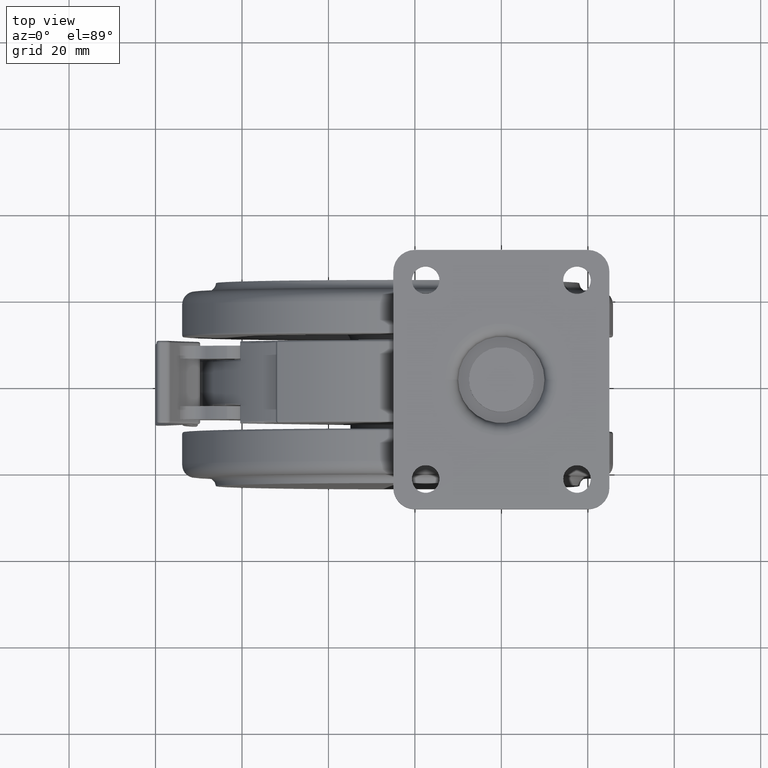
[diagram: clean part render]
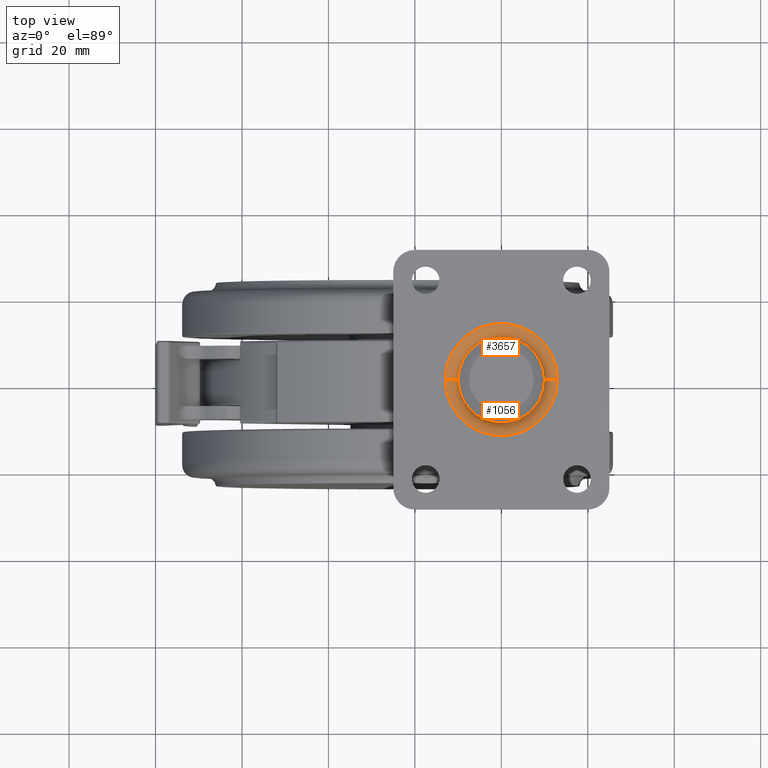
[diagram: same view with one multi-face feature highlighted, each face labeled with its STEP entity id]
A machine part, top view. The highlighted faces form ONE feature: a constant-radius fillet chain: 2 tangent blend faces with common blend radius 3 mm. The faces share edges in the B-rep.
Their STEP definitions:
[1] entity #1056 (Torus):
#108 = AXIS2_PLACEMENT_3D ( 'NONE', #2502, #572, #6081 ) ;
#311 = DIRECTION ( 'NONE',  ( -1.000000000000000000, 0.0000000000000000000, 0.0000000000000000000 ) ) ;
#465 = VERTEX_POINT ( 'NONE', #3398 ) ;
#572 = DIRECTION ( 'NONE',  ( 0.0000000000000000000, 0.0000000000000000000, -1.000000000000000000 ) ) ;
#611 = CIRCLE ( 'NONE', #5923, 13.00000000000000000 ) ;
#645 = DIRECTION ( 'NONE',  ( -0.0000000000000000000, -0.0000000000000000000, 1.000000000000000000 ) ) ;
#716 = CARTESIAN_POINT ( 'NONE',  ( 10.00000000000000000, -2.701336561138454100E-014, 11.00000000000000000 ) ) ;
#845 = AXIS2_PLACEMENT_3D ( 'NONE', #2638, #7286, #3303 ) ;
#1050 = EDGE_CURVE ( 'NONE', #7793, #1757, #8194, .T. ) ;
#1056 = ADVANCED_FACE ( 'NONE', ( #4671 ), #3111, .T. ) ;
#1395 = CARTESIAN_POINT ( 'NONE',  ( -13.00000000000000000, -2.842170943040399500E-014, 11.00000000000000000 ) ) ;
#1757 = VERTEX_POINT ( 'NONE', #716 ) ;
#2065 = DIRECTION ( 'NONE',  ( 0.0000000000000000000, 0.0000000000000000000, -1.000000000000000000 ) ) ;
#2218 = CIRCLE ( 'NONE', #845, 3.000000000000000900 ) ;
#2502 = CARTESIAN_POINT ( 'NONE',  ( 0.0000000000000000000, -2.842170943040399500E-014, 11.00000000000000000 ) ) ;
#2638 = CARTESIAN_POINT ( 'NONE',  ( 13.00000000000000000, -2.682966859151243800E-014, 11.00000000000000000 ) ) ;
#2950 = CARTESIAN_POINT ( 'NONE',  ( -10.00000000000000000, -2.842170943040399500E-014, 11.00000000000000000 ) ) ;
#3006 = CARTESIAN_POINT ( 'NONE',  ( 13.00000000000000000, -2.682966859151243800E-014, 13.99999999999999800 ) ) ;
#3023 = CARTESIAN_POINT ( 'NONE',  ( 0.0000000000000000000, -2.842170943040399500E-014, 14.00000000000000000 ) ) ;
#3111 = TOROIDAL_SURFACE ( 'NONE', #108, 13.00000000000000000, 3.000000000000000000 ) ;
#3303 = DIRECTION ( 'NONE',  ( -1.000000000000000000, -1.224646799147350200E-016, 0.0000000000000000000 ) ) ;
#3398 = CARTESIAN_POINT ( 'NONE',  ( -13.00000000000000000, -2.842170943040399500E-014, 13.99999999999999800 ) ) ;
#3700 = DIRECTION ( 'NONE',  ( -1.000000000000000000, 0.0000000000000000000, 0.0000000000000000000 ) ) ;
#4130 = ORIENTED_EDGE ( 'NONE', *, *, #4479, .F. ) ;
#4479 = EDGE_CURVE ( 'NONE', #1757, #8125, #2218, .T. ) ;
#4671 = FACE_OUTER_BOUND ( 'NONE', #6946, .T. ) ;
#5055 = ORIENTED_EDGE ( 'NONE', *, *, #1050, .F. ) ;
#5622 = CIRCLE ( 'NONE', #6086, 2.999999999999999100 ) ;
#5923 = AXIS2_PLACEMENT_3D ( 'NONE', #3023, #7668, #3700 ) ;
#6044 = DIRECTION ( 'NONE',  ( -0.0000000000000000000, -1.000000000000000000, -0.0000000000000000000 ) ) ;
#6081 = DIRECTION ( 'NONE',  ( -1.000000000000000000, 0.0000000000000000000, 0.0000000000000000000 ) ) ;
#6086 = AXIS2_PLACEMENT_3D ( 'NONE', #1395, #6044, #2065 ) ;
#6198 = EDGE_CURVE ( 'NONE', #7793, #465, #5622, .T. ) ;
#6471 = EDGE_CURVE ( 'NONE', #8125, #465, #611, .T. ) ;
#6946 = EDGE_LOOP ( 'NONE', ( #4130, #5055, #8580, #8061 ) ) ;
#7286 = DIRECTION ( 'NONE',  ( -1.224646799147353200E-016, 1.000000000000000000, 0.0000000000000000000 ) ) ;
#7417 = AXIS2_PLACEMENT_3D ( 'NONE', #7845, #645, #311 ) ;
#7668 = DIRECTION ( 'NONE',  ( 0.0000000000000000000, 0.0000000000000000000, -1.000000000000000000 ) ) ;
#7793 = VERTEX_POINT ( 'NONE', #2950 ) ;
#7845 = CARTESIAN_POINT ( 'NONE',  ( 0.0000000000000000000, -2.842170943040399500E-014, 11.00000000000000000 ) ) ;
#8061 = ORIENTED_EDGE ( 'NONE', *, *, #6471, .F. ) ;
#8125 = VERTEX_POINT ( 'NONE', #3006 ) ;
#8194 = CIRCLE ( 'NONE', #7417, 10.00000000000000000 ) ;
#8580 = ORIENTED_EDGE ( 'NONE', *, *, #6198, .T. ) ;
[2] entity #3657 (Torus):
#256 = DIRECTION ( 'NONE',  ( 0.0000000000000000000, 0.0000000000000000000, -1.000000000000000000 ) ) ;
#465 = VERTEX_POINT ( 'NONE', #3398 ) ;
#562 = AXIS2_PLACEMENT_3D ( 'NONE', #2992, #7644, #3677 ) ;
#588 = EDGE_CURVE ( 'NONE', #1757, #7793, #4893, .T. ) ;
#716 = CARTESIAN_POINT ( 'NONE',  ( 10.00000000000000000, -2.701336561138454100E-014, 11.00000000000000000 ) ) ;
#845 = AXIS2_PLACEMENT_3D ( 'NONE', #2638, #7286, #3303 ) ;
#905 = CARTESIAN_POINT ( 'NONE',  ( 0.0000000000000000000, -2.842170943040399500E-014, 11.00000000000000000 ) ) ;
#1005 = ORIENTED_EDGE ( 'NONE', *, *, #4234, .F. ) ;
#1395 = CARTESIAN_POINT ( 'NONE',  ( -13.00000000000000000, -2.842170943040399500E-014, 11.00000000000000000 ) ) ;
#1427 = ORIENTED_EDGE ( 'NONE', *, *, #6198, .F. ) ;
#1757 = VERTEX_POINT ( 'NONE', #716 ) ;
#2065 = DIRECTION ( 'NONE',  ( 0.0000000000000000000, 0.0000000000000000000, -1.000000000000000000 ) ) ;
#2218 = CIRCLE ( 'NONE', #845, 3.000000000000000900 ) ;
#2282 = DIRECTION ( 'NONE',  ( -1.000000000000000000, 0.0000000000000000000, 0.0000000000000000000 ) ) ;
#2479 = EDGE_LOOP ( 'NONE', ( #5598, #2563, #1005, #1427 ) ) ;
#2563 = ORIENTED_EDGE ( 'NONE', *, *, #4479, .T. ) ;
#2638 = CARTESIAN_POINT ( 'NONE',  ( 13.00000000000000000, -2.682966859151243800E-014, 11.00000000000000000 ) ) ;
#2950 = CARTESIAN_POINT ( 'NONE',  ( -10.00000000000000000, -2.842170943040399500E-014, 11.00000000000000000 ) ) ;
#2992 = CARTESIAN_POINT ( 'NONE',  ( 0.0000000000000000000, -2.842170943040399500E-014, 14.00000000000000000 ) ) ;
#3006 = CARTESIAN_POINT ( 'NONE',  ( 13.00000000000000000, -2.682966859151243800E-014, 13.99999999999999800 ) ) ;
#3013 = CARTESIAN_POINT ( 'NONE',  ( 0.0000000000000000000, -2.842170943040399500E-014, 11.00000000000000000 ) ) ;
#3303 = DIRECTION ( 'NONE',  ( -1.000000000000000000, -1.224646799147350200E-016, 0.0000000000000000000 ) ) ;
#3320 = AXIS2_PLACEMENT_3D ( 'NONE', #905, #256, #2282 ) ;
#3376 = DIRECTION ( 'NONE',  ( -0.0000000000000000000, -0.0000000000000000000, 1.000000000000000000 ) ) ;
#3398 = CARTESIAN_POINT ( 'NONE',  ( -13.00000000000000000, -2.842170943040399500E-014, 13.99999999999999800 ) ) ;
#3430 = DIRECTION ( 'NONE',  ( -1.000000000000000000, 0.0000000000000000000, 0.0000000000000000000 ) ) ;
#3657 = ADVANCED_FACE ( 'NONE', ( #4525 ), #6283, .T. ) ;
#3677 = DIRECTION ( 'NONE',  ( -1.000000000000000000, 0.0000000000000000000, 0.0000000000000000000 ) ) ;
#4103 = CIRCLE ( 'NONE', #562, 13.00000000000000000 ) ;
#4234 = EDGE_CURVE ( 'NONE', #465, #8125, #4103, .T. ) ;
#4479 = EDGE_CURVE ( 'NONE', #1757, #8125, #2218, .T. ) ;
#4525 = FACE_OUTER_BOUND ( 'NONE', #2479, .T. ) ;
#4893 = CIRCLE ( 'NONE', #8494, 10.00000000000000000 ) ;
#5598 = ORIENTED_EDGE ( 'NONE', *, *, #588, .F. ) ;
#5622 = CIRCLE ( 'NONE', #6086, 2.999999999999999100 ) ;
#6044 = DIRECTION ( 'NONE',  ( -0.0000000000000000000, -1.000000000000000000, -0.0000000000000000000 ) ) ;
#6086 = AXIS2_PLACEMENT_3D ( 'NONE', #1395, #6044, #2065 ) ;
#6198 = EDGE_CURVE ( 'NONE', #7793, #465, #5622, .T. ) ;
#6283 = TOROIDAL_SURFACE ( 'NONE', #3320, 13.00000000000000000, 3.000000000000000000 ) ;
#7286 = DIRECTION ( 'NONE',  ( -1.224646799147353200E-016, 1.000000000000000000, 0.0000000000000000000 ) ) ;
#7644 = DIRECTION ( 'NONE',  ( 0.0000000000000000000, 0.0000000000000000000, -1.000000000000000000 ) ) ;
#7793 = VERTEX_POINT ( 'NONE', #2950 ) ;
#8125 = VERTEX_POINT ( 'NONE', #3006 ) ;
#8494 = AXIS2_PLACEMENT_3D ( 'NONE', #3013, #3376, #3430 ) ;